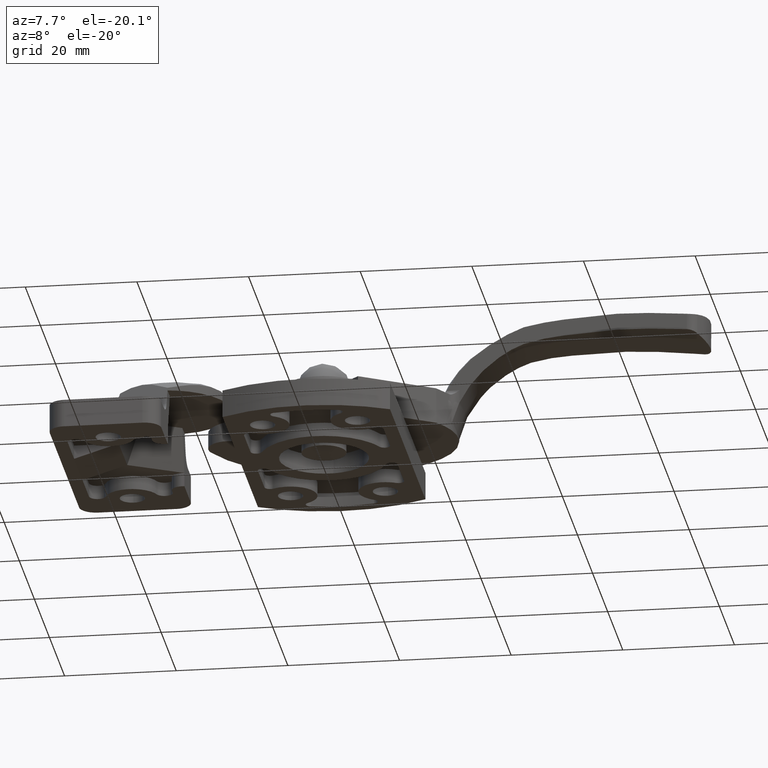
[diagram: clean part render]
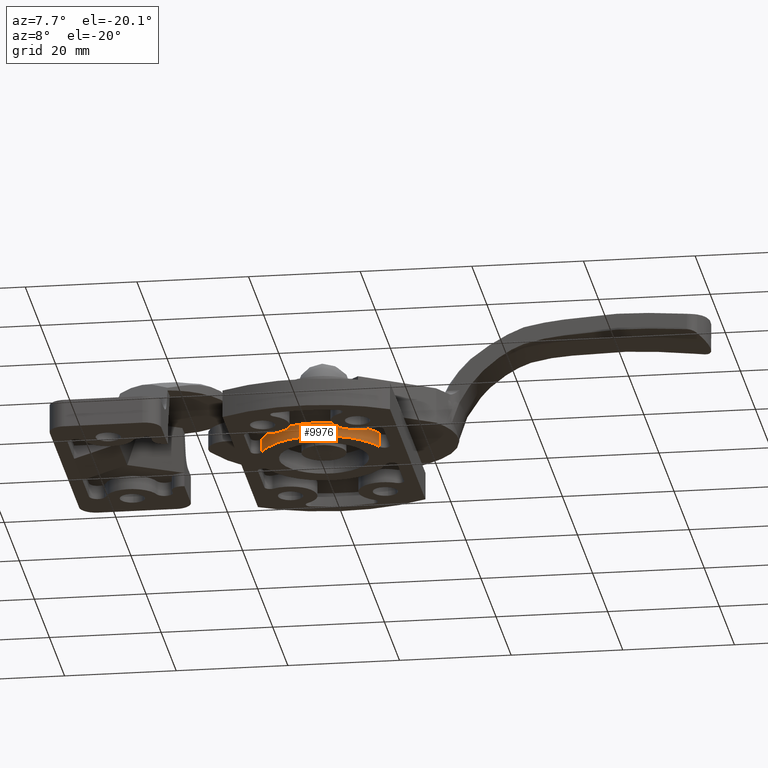
[diagram: same view with one face highlighted and labeled with its STEP entity id]
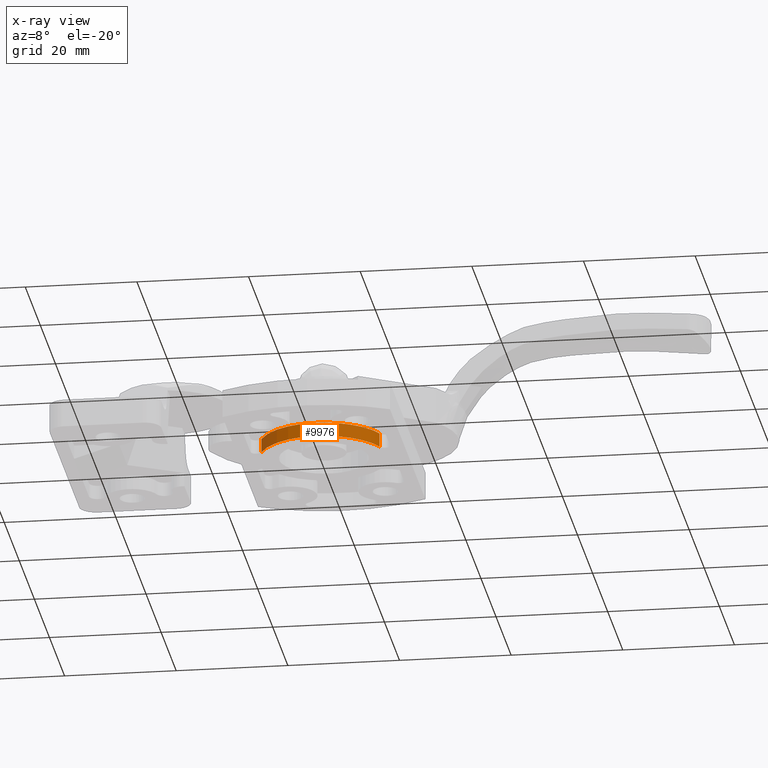
[diagram: x-ray of the same camera — body ghosted, the highlighted face saturated]
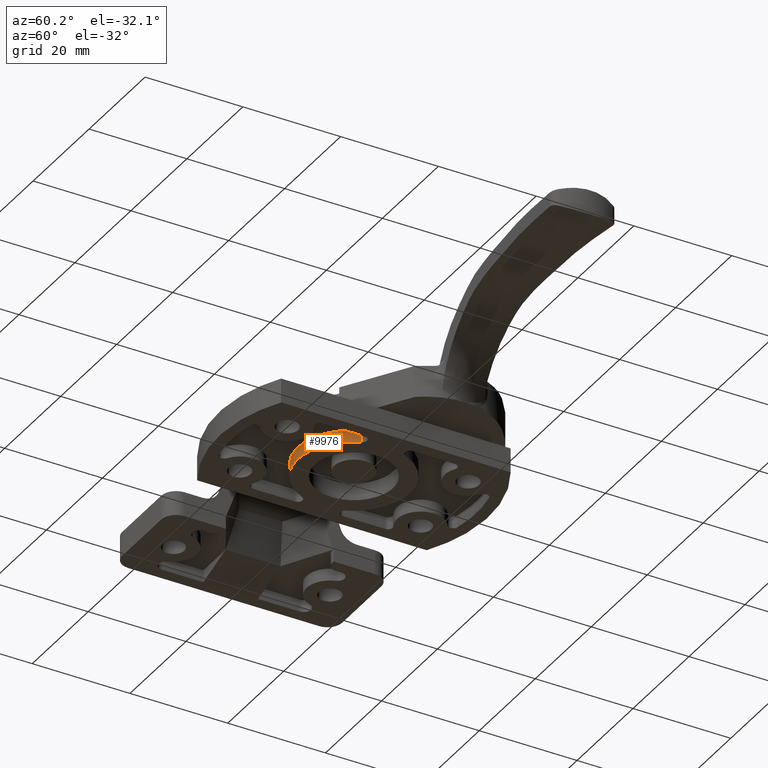
[diagram: same view with one face highlighted and labeled with its STEP entity id]
A machine part, auxiliary view. The second image highlights one B-rep face of the part: STEP entity #9976.
The next image is the same camera in x-ray: the body ghosted, the highlighted face saturated — about 0% of this face is hidden behind the body in this view.
A second angle (auxiliary view) of the same face is appended — the face is thin or edge-on in the first view.
In plain terms, the highlighted face is a freeform B-spline surface patch.
Its self-contained STEP definition (entity closure, byte-faithful):
#9353=CARTESIAN_POINT('',(10.580000005162720,-4.507061114601941,2.499999999999945));
#9354=VERTEX_POINT('',#9353);
#9501=CARTESIAN_POINT('',(-10.580000005162740,-4.507061114601900,2.499999999999945));
#9502=VERTEX_POINT('',#9501);
#9518=CARTESIAN_POINT('',(-10.580000005162740,-4.507061114601898,2.499999999999945));
#9519=CARTESIAN_POINT('',(-7.601020523897553,-11.500000000000000,2.499999999999945));
#9520=CARTESIAN_POINT('',(0.0,-11.500000000000000,2.499999999999945));
#9521=CARTESIAN_POINT('',(7.601020523897517,-11.500000000000000,2.499999999999945));
#9522=CARTESIAN_POINT('',(10.580000005162720,-4.507061114601942,2.499999999999945));
#9530=(BOUNDED_CURVE()B_SPLINE_CURVE(2,(#9518,#9519,#9520,#9521,#9522),.UNSPECIFIED.,.F.,.U.)B_SPLINE_CURVE_WITH_KNOTS((3,2,3),(0.0,0.500000000000000,1.0),.UNSPECIFIED.)CURVE()GEOMETRIC_REPRESENTATION_ITEM()RATIONAL_B_SPLINE_CURVE((1.0,0.834241678949053,1.0,0.834241678949053,1.0))REPRESENTATION_ITEM(''));
#9531=EDGE_CURVE('',#9502,#9354,#9530,.T.);
#9905=CARTESIAN_POINT('',(-10.580000005162740,-4.507061114601900,0.0));
#9906=VERTEX_POINT('',#9905);
#9922=CARTESIAN_POINT('',(-10.580000005162740,-4.507061114601900,2.499999999999945));
#9923=CARTESIAN_POINT('',(-10.580000005162740,-4.507061114601900,0.0));
#9924=QUASI_UNIFORM_CURVE('',1,(#9922,#9923),.UNSPECIFIED.,.F.,.U.);
#9925=EDGE_CURVE('',#9502,#9906,#9924,.T.);
#9932=CARTESIAN_POINT('',(-10.694355609219730,-4.228564544091827,2.562499999999944));
#9933=CARTESIAN_POINT('',(-10.694355609219730,-4.228564544091827,-0.064062499999999));
#9934=CARTESIAN_POINT('',(-7.788143715847500,-11.578591518822897,2.562499999999945));
#9935=CARTESIAN_POINT('',(-7.788143715847500,-11.578591518822897,-0.064062499999999));
#9936=CARTESIAN_POINT('',(0.115190799159840,-11.499423075954240,2.562499999999944));
#9937=CARTESIAN_POINT('',(0.115190799159840,-11.499423075954240,-0.064062499999999));
#9938=CARTESIAN_POINT('',(8.018525314167180,-11.420254633085575,2.562499999999945));
#9939=CARTESIAN_POINT('',(8.018525314167180,-11.420254633085575,-0.064062499999999));
#9940=CARTESIAN_POINT('',(10.776916990222510,-4.013484793275431,2.562499999999944));
#9941=CARTESIAN_POINT('',(10.776916990222510,-4.013484793275431,-0.064062499999999));
#9949=(BOUNDED_SURFACE()B_SPLINE_SURFACE(1,2,((#9932,#9934,#9936,#9938,#9940),(#9933,#9935,#9937,#9939,#9941)),.UNSPECIFIED.,.F.,.F.,.U.)B_SPLINE_SURFACE_WITH_KNOTS((2,2),(3,2,3),(0.0,2.626562499999943),(0.0,14.283379659290230,28.566759318580459),.UNSPECIFIED.)GEOMETRIC_REPRESENTATION_ITEM()RATIONAL_B_SPLINE_SURFACE(((1.0,0.824126188622016,1.0,0.824126188622016,1.0),(1.0,0.824126188622016,1.0,0.824126188622016,1.0)))REPRESENTATION_ITEM('')SURFACE());
#9950=CARTESIAN_POINT('',(10.580000005162720,-4.507061114601941,0.0));
#9951=VERTEX_POINT('',#9950);
#9952=CARTESIAN_POINT('',(-10.580000005162740,-4.507061114601898,0.0));
#9953=CARTESIAN_POINT('',(-7.601020523897553,-11.500000000000000,0.0));
#9954=CARTESIAN_POINT('',(0.0,-11.500000000000000,0.0));
#9955=CARTESIAN_POINT('',(7.601020523897517,-11.500000000000000,0.0));
#9956=CARTESIAN_POINT('',(10.580000005162720,-4.507061114601942,0.0));
#9964=(BOUNDED_CURVE()B_SPLINE_CURVE(2,(#9952,#9953,#9954,#9955,#9956),.UNSPECIFIED.,.F.,.U.)B_SPLINE_CURVE_WITH_KNOTS((3,2,3),(0.0,0.500000000000000,1.0),.UNSPECIFIED.)CURVE()GEOMETRIC_REPRESENTATION_ITEM()RATIONAL_B_SPLINE_CURVE((1.0,0.834241678949053,1.0,0.834241678949053,1.0))REPRESENTATION_ITEM(''));
#9965=EDGE_CURVE('',#9906,#9951,#9964,.T.);
#9966=ORIENTED_EDGE('',*,*,#9965,.T.);
#9967=CARTESIAN_POINT('',(10.580000005162720,-4.507061114601941,2.499999999999945));
#9968=CARTESIAN_POINT('',(10.580000005162720,-4.507061114601941,0.0));
#9969=QUASI_UNIFORM_CURVE('',1,(#9967,#9968),.UNSPECIFIED.,.F.,.U.);
#9970=EDGE_CURVE('',#9354,#9951,#9969,.T.);
#9971=ORIENTED_EDGE('',*,*,#9970,.F.);
#9972=ORIENTED_EDGE('',*,*,#9531,.F.);
#9973=ORIENTED_EDGE('',*,*,#9925,.T.);
#9974=EDGE_LOOP('',(#9966,#9971,#9972,#9973));
#9975=FACE_OUTER_BOUND('',#9974,.T.);
#9976=ADVANCED_FACE('',(#9975),#9949,.T.);